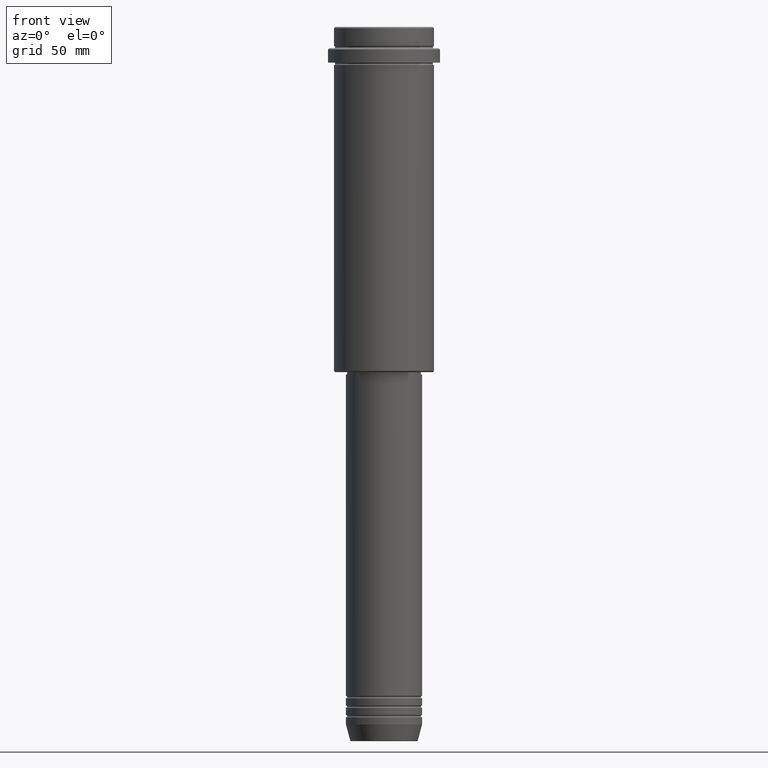
[diagram: clean part render]
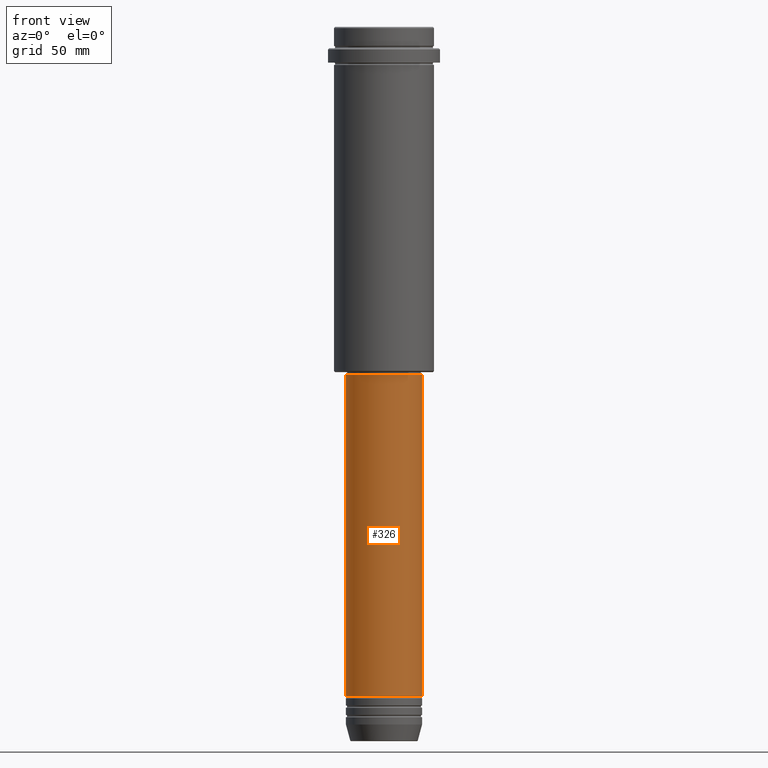
[diagram: same view with one face highlighted and labeled with its STEP entity id]
A machine part, front view. The second image highlights one B-rep face of the part: STEP entity #326.
In plain terms, the highlighted cylindrical surface (partial cylindrical patch) has radius 16 mm, axis along (-0, -0, 1).
Its self-contained STEP definition (entity closure, byte-faithful):
#2 = CARTESIAN_POINT ( 'NONE',  ( 0.000000000000000000, 0.000000000000000000, -280.9999999999998863 ) ) ;
#27 = DIRECTION ( 'NONE',  ( -0.000000000000000000, -0.000000000000000000, 1.000000000000000000 ) ) ;
#29 = CYLINDRICAL_SURFACE ( 'NONE', #1146, 16.00000000000000000 ) ;
#136 = FACE_OUTER_BOUND ( 'NONE', #636, .T. ) ;
#163 = DIRECTION ( 'NONE',  ( 1.000000000000000000, 0.000000000000000000, 0.000000000000000000 ) ) ;
#172 = AXIS2_PLACEMENT_3D ( 'NONE', #2, #1297, #208 ) ;
#200 = VERTEX_POINT ( 'NONE', #1160 ) ;
#208 = DIRECTION ( 'NONE',  ( 1.000000000000000000, 0.000000000000000000, 0.000000000000000000 ) ) ;
#263 = CARTESIAN_POINT ( 'NONE',  ( 16.00000000000000355, 0.000000000000000000, -145.9999999999999147 ) ) ;
#326 = ADVANCED_FACE ( 'NONE', ( #136 ), #29, .T. ) ;
#391 = ORIENTED_EDGE ( 'NONE', *, *, #555, .F. ) ;
#396 = VERTEX_POINT ( 'NONE', #1114 ) ;
#444 = EDGE_CURVE ( 'NONE', #396, #1258, #682, .T. ) ;
#466 = CARTESIAN_POINT ( 'NONE',  ( -16.00000000000000000, 1.959434878635765131E-15, 0.000000000000000000 ) ) ;
#487 = DIRECTION ( 'NONE',  ( 1.000000000000000000, 0.000000000000000000, 0.000000000000000000 ) ) ;
#489 = CARTESIAN_POINT ( 'NONE',  ( 0.000000000000000000, 0.000000000000000000, 0.000000000000000000 ) ) ;
#517 = ORIENTED_EDGE ( 'NONE', *, *, #444, .T. ) ;
#555 = EDGE_CURVE ( 'NONE', #1408, #200, #999, .T. ) ;
#564 = CIRCLE ( 'NONE', #172, 16.00000000000000000 ) ;
#636 = EDGE_LOOP ( 'NONE', ( #391, #663, #517, #1364 ) ) ;
#663 = ORIENTED_EDGE ( 'NONE', *, *, #1179, .T. ) ;
#682 = LINE ( 'NONE', #870, #1402 ) ;
#721 = CARTESIAN_POINT ( 'NONE',  ( 0.000000000000000000, 0.000000000000000000, -145.9999999999999147 ) ) ;
#802 = AXIS2_PLACEMENT_3D ( 'NONE', #721, #930, #487 ) ;
#815 = DIRECTION ( 'NONE',  ( -0.000000000000000000, -0.000000000000000000, 1.000000000000000000 ) ) ;
#870 = CARTESIAN_POINT ( 'NONE',  ( 16.00000000000000000, 0.000000000000000000, 0.000000000000000000 ) ) ;
#877 = DIRECTION ( 'NONE',  ( -0.000000000000000000, -0.000000000000000000, 1.000000000000000000 ) ) ;
#930 = DIRECTION ( 'NONE',  ( -0.000000000000000000, -0.000000000000000000, 1.000000000000000000 ) ) ;
#999 = LINE ( 'NONE', #466, #1094 ) ;
#1002 = EDGE_CURVE ( 'NONE', #200, #1258, #1035, .T. ) ;
#1035 = CIRCLE ( 'NONE', #802, 16.00000000000000355 ) ;
#1094 = VECTOR ( 'NONE', #27, 1000.000000000000000 ) ;
#1114 = CARTESIAN_POINT ( 'NONE',  ( 16.00000000000000000, 0.000000000000000000, -280.9999999999998863 ) ) ;
#1146 = AXIS2_PLACEMENT_3D ( 'NONE', #489, #815, #163 ) ;
#1160 = CARTESIAN_POINT ( 'NONE',  ( -16.00000000000000355, 1.959434878635765526E-15, -145.9999999999999147 ) ) ;
#1179 = EDGE_CURVE ( 'NONE', #1408, #396, #564, .T. ) ;
#1246 = CARTESIAN_POINT ( 'NONE',  ( -16.00000000000000000, 1.959434878635765131E-15, -280.9999999999998863 ) ) ;
#1258 = VERTEX_POINT ( 'NONE', #263 ) ;
#1297 = DIRECTION ( 'NONE',  ( -0.000000000000000000, -0.000000000000000000, 1.000000000000000000 ) ) ;
#1364 = ORIENTED_EDGE ( 'NONE', *, *, #1002, .F. ) ;
#1402 = VECTOR ( 'NONE', #877, 1000.000000000000000 ) ;
#1408 = VERTEX_POINT ( 'NONE', #1246 ) ;